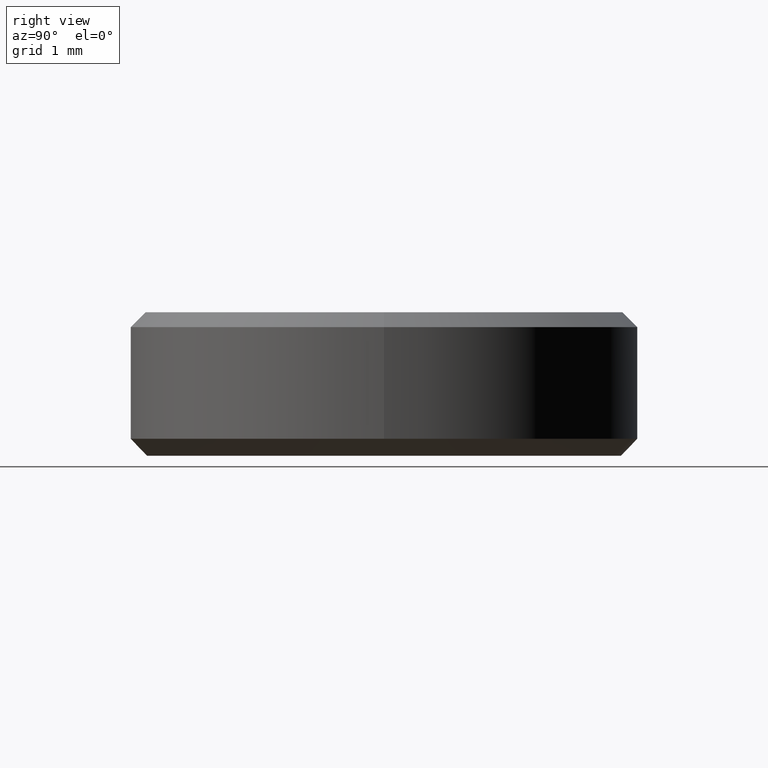
[diagram: clean part render]
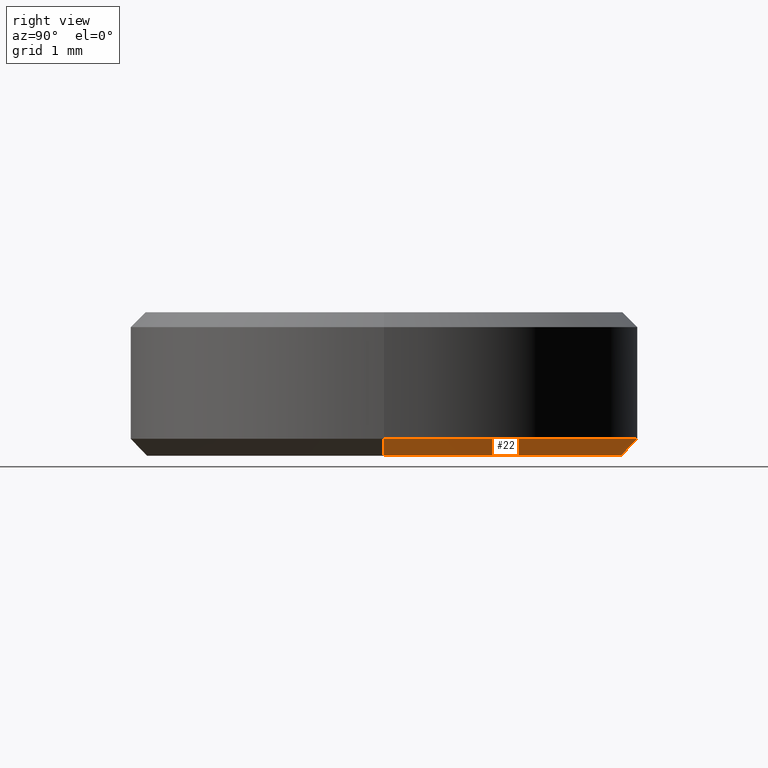
[diagram: same view with one face highlighted and labeled with its STEP entity id]
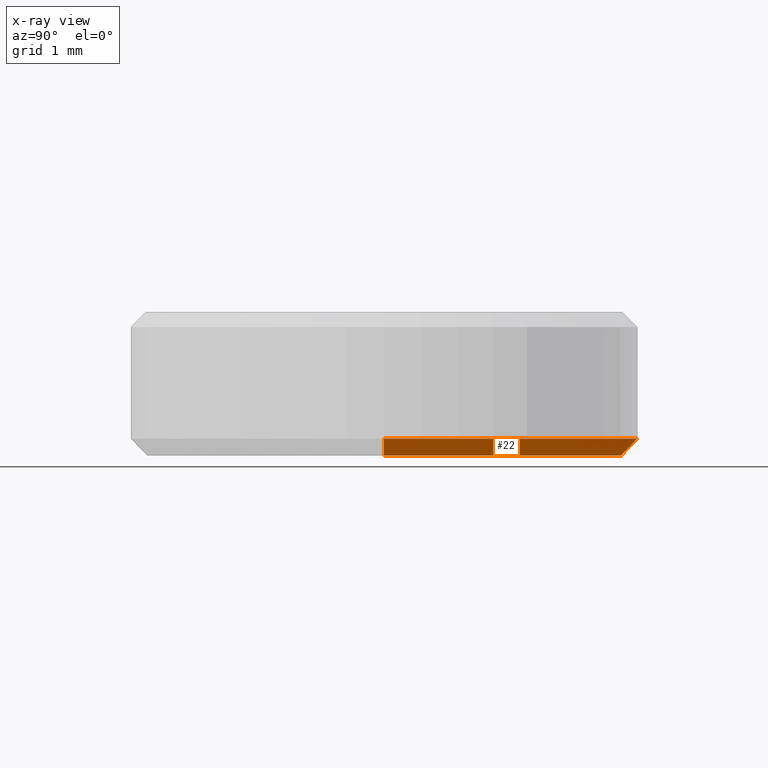
[diagram: x-ray of the same camera — body ghosted, the highlighted face saturated]
A machine part, right view. The second image highlights one B-rep face of the part: STEP entity #22.
The next image is the same camera in x-ray: the body ghosted, the highlighted face saturated — about 0% of this face is hidden behind the body in this view.
In plain terms, the highlighted conical surface has half-angle 45 deg.
Its self-contained STEP definition (entity closure, byte-faithful):
#2 = EDGE_CURVE ( 'NONE', #203, #196, #263, .T. ) ;
#6 = DIRECTION ( 'NONE',  ( -0.000000000000000000, -0.000000000000000000, 1.000000000000000000 ) ) ;
#7 = FACE_OUTER_BOUND ( 'NONE', #221, .T. ) ;
#13 = ORIENTED_EDGE ( 'NONE', *, *, #103, .F. ) ;
#17 = VECTOR ( 'NONE', #161, 1000.000000000000000 ) ;
#18 = ORIENTED_EDGE ( 'NONE', *, *, #224, .F. ) ;
#22 = ADVANCED_FACE ( 'NONE', ( #7 ), #46, .T. ) ;
#28 = LINE ( 'NONE', #241, #17 ) ;
#46 = CONICAL_SURFACE ( 'NONE', #80, 3.000000000000000000, 0.7853981633974471688 ) ;
#50 = DIRECTION ( 'NONE',  ( 0.000000000000000000, 0.000000000000000000, -1.000000000000000000 ) ) ;
#65 = DIRECTION ( 'NONE',  ( 1.000000000000000000, 0.000000000000000000, 0.000000000000000000 ) ) ;
#71 = CARTESIAN_POINT ( 'NONE',  ( 0.000000000000000000, 0.000000000000000000, 1.836970198721029934E-16 ) ) ;
#74 = CARTESIAN_POINT ( 'NONE',  ( -3.000000000000000000, 3.673940397442059868E-16, 0.2000000000000020373 ) ) ;
#75 = CARTESIAN_POINT ( 'NONE',  ( 0.000000000000000000, 0.000000000000000000, 0.2000000000000020373 ) ) ;
#80 = AXIS2_PLACEMENT_3D ( 'NONE', #85, #6, #168 ) ;
#85 = CARTESIAN_POINT ( 'NONE',  ( 0.000000000000000000, 0.000000000000000000, 0.2000000000000020373 ) ) ;
#86 = ORIENTED_EDGE ( 'NONE', *, *, #2, .T. ) ;
#96 = CARTESIAN_POINT ( 'NONE',  ( -3.000000000000000000, 3.673940397442059868E-16, 0.2000000000000020373 ) ) ;
#103 = EDGE_CURVE ( 'NONE', #203, #243, #248, .T. ) ;
#143 = CARTESIAN_POINT ( 'NONE',  ( 2.799999999999998490, 0.000000000000000000, 1.836970198721029934E-16 ) ) ;
#145 = AXIS2_PLACEMENT_3D ( 'NONE', #75, #240, #217 ) ;
#161 = DIRECTION ( 'NONE',  ( 0.7071067811865467956, 0.000000000000000000, 0.7071067811865483499 ) ) ;
#164 = VECTOR ( 'NONE', #197, 1000.000000000000000 ) ;
#168 = DIRECTION ( 'NONE',  ( 1.000000000000000000, 0.000000000000000000, 0.000000000000000000 ) ) ;
#173 = VERTEX_POINT ( 'NONE', #182 ) ;
#180 = CARTESIAN_POINT ( 'NONE',  ( -2.799999999999998490, 3.551475717527323339E-16, 1.836970198721029934E-16 ) ) ;
#182 = CARTESIAN_POINT ( 'NONE',  ( 3.000000000000000000, 0.000000000000000000, 0.2000000000000020373 ) ) ;
#183 = EDGE_CURVE ( 'NONE', #173, #196, #249, .T. ) ;
#195 = AXIS2_PLACEMENT_3D ( 'NONE', #71, #50, #65 ) ;
#196 = VERTEX_POINT ( 'NONE', #96 ) ;
#197 = DIRECTION ( 'NONE',  ( -0.7071067811865467956, 8.659560562354925463E-17, 0.7071067811865483499 ) ) ;
#203 = VERTEX_POINT ( 'NONE', #180 ) ;
#217 = DIRECTION ( 'NONE',  ( 1.000000000000000000, 0.000000000000000000, 0.000000000000000000 ) ) ;
#221 = EDGE_LOOP ( 'NONE', ( #13, #86, #261, #18 ) ) ;
#224 = EDGE_CURVE ( 'NONE', #243, #173, #28, .T. ) ;
#240 = DIRECTION ( 'NONE',  ( -0.000000000000000000, -0.000000000000000000, 1.000000000000000000 ) ) ;
#241 = CARTESIAN_POINT ( 'NONE',  ( 3.000000000000000000, 0.000000000000000000, 0.2000000000000020373 ) ) ;
#243 = VERTEX_POINT ( 'NONE', #143 ) ;
#248 = CIRCLE ( 'NONE', #195, 2.799999999999998490 ) ;
#249 = CIRCLE ( 'NONE', #145, 3.000000000000000000 ) ;
#261 = ORIENTED_EDGE ( 'NONE', *, *, #183, .F. ) ;
#263 = LINE ( 'NONE', #74, #164 ) ;